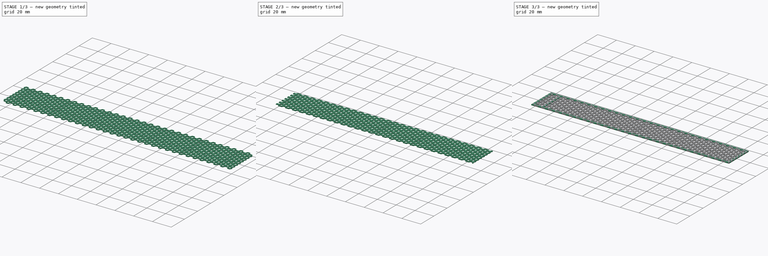
[diagram: build sequence overview — one tinted view per stage of 3, left to right]
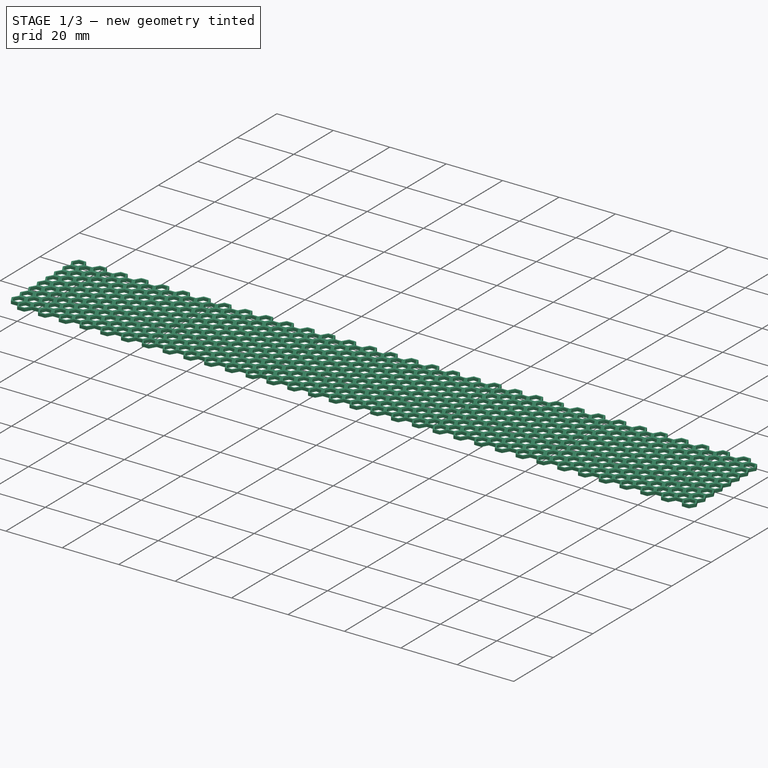
[diagram: stage 1 of 3 — iso view after this stage's code; geometry added in this stage tinted green]
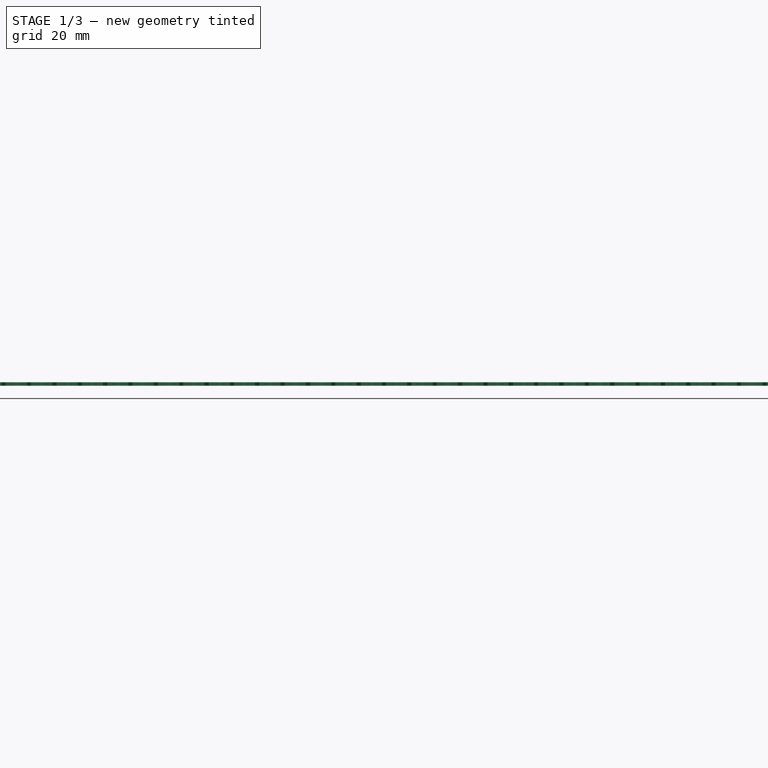
[diagram: stage 1 of 3 — front view after this stage's code; geometry added in this stage tinted green]
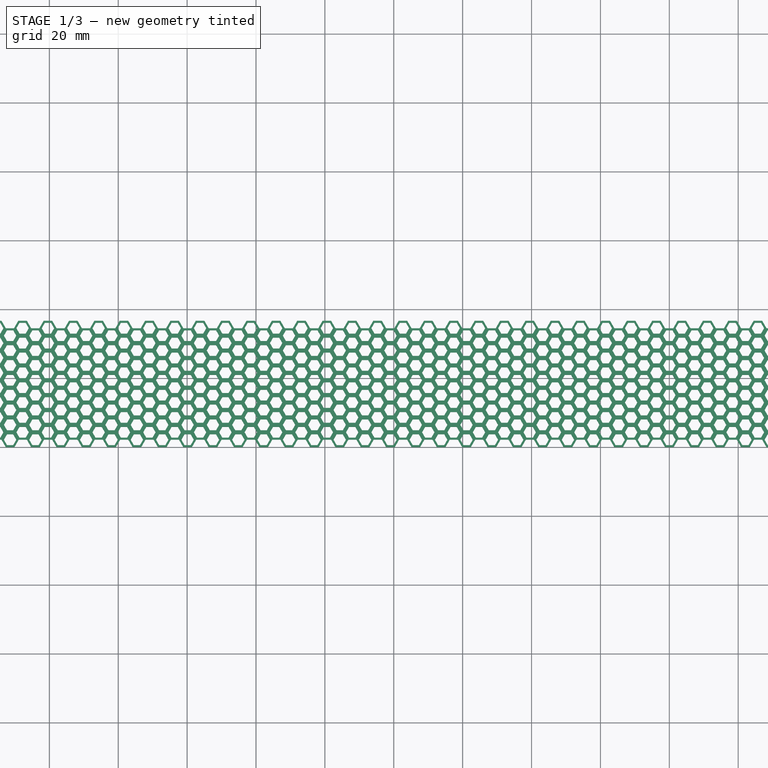
[diagram: stage 1 of 3 — top view after this stage's code; geometry added in this stage tinted green]
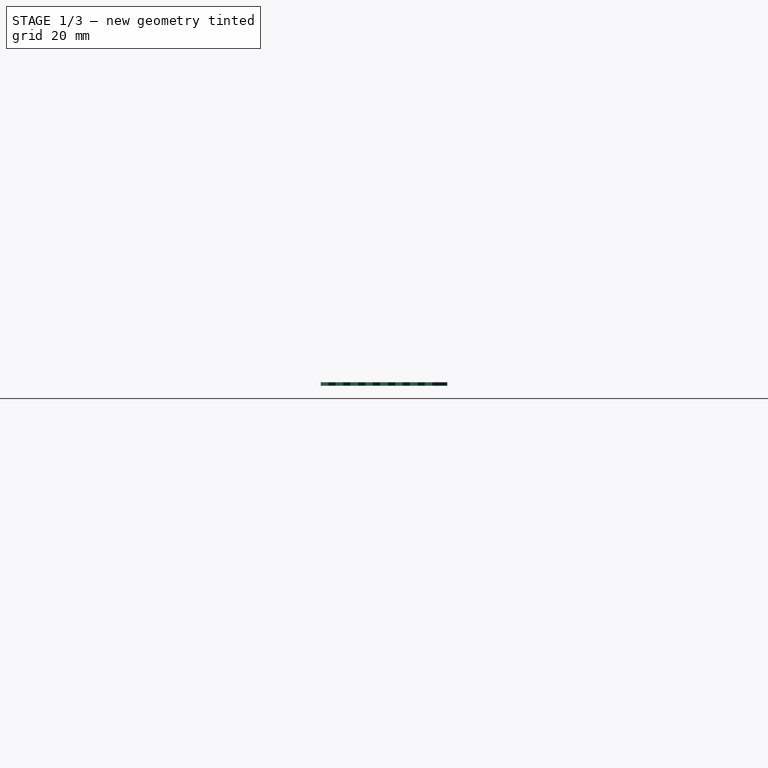
[diagram: stage 1 of 3 — right view after this stage's code; geometry added in this stage tinted green]
FCSTD DOCUMENT  (FreeCAD 0.20R29177 (Git))
Label: Elastic-Honeycommb
License: Creative Commons Attribution
LicenseURL: http://creativecommons.org/licenses/by/4.0/
objects: Sketcher::SketchObject×3, PartDesign::Pad×3, PartDesign::Body×3, PartDesign::LinearPattern×2, Spreadsheet::Sheet×1, PartDesign::MultiTransform×1, Part::MultiCommon×1, Part::MultiFuse×1, Part::Refine×1
note: 18 computed .brp shape members not serialized (recipe doc carries the construction recipe); baked Part::Feature solids carry a one-line shape summary decoded from their .brp

FEATURE [Spreadsheet::Sheet] Spreadsheet  label="param"
  cells = A2=length; B2(length)=235; A3=width; B3(width)==30mm; A4=hight; B4(hight)==1mm; A5=Combstrength; B5(combstrength)==1.2mm; A6=Combdia; B6(combdia)==3.6mm
FEATURE [Sketcher::SketchObject] Sketch
  FullyConstrained = true
  MapMode = 5
  Support = -> [XY_Plane]
  expr: Constraints[74] = <<param>>.combstrength
  expr: Constraints[77] = <<param>>.combdia
  sketch-geometry (27):
    g0: LineSegment StartX=2.14641 StartY=3.71769 StartZ=0 EndX=0.34641 EndY=3.71769 EndZ=0
    g1: LineSegment StartX=0.34641 StartY=3.71769 StartZ=0 EndX=-0.55359 EndY=2.15885 EndZ=0
    g2: LineSegment StartX=-0.55359 StartY=2.15885 StartZ=0 EndX=0.34641 EndY=0.6 EndZ=0
    g3: LineSegment StartX=0.34641 StartY=0.6 StartZ=0 EndX=2.14641 EndY=0.6 EndZ=0
    g4: LineSegment StartX=2.14641 StartY=0.6 StartZ=0 EndX=3.04641 EndY=2.15885 EndZ=0
    g5: LineSegment StartX=3.04641 StartY=2.15885 StartZ=0 EndX=2.14641 EndY=3.71769 EndZ=0
    g6: Circle CenterX=1.24641 CenterY=2.15885 CenterZ=0 NormalX=0 NormalY=0 NormalZ=1 AngleXU=0 Radius=1.8
    g7: LineSegment StartX=2.49282 StartY=4.31769 StartZ=0 EndX=-4e-16 EndY=4.31769 EndZ=0
    g8: LineSegment StartX=-1.24641 StartY=2.15885 StartZ=0 EndX=0 EndY=0 EndZ=0
    g9: LineSegment StartX=0 StartY=0 StartZ=0 EndX=2.49282 EndY=0 EndZ=0
    g10: LineSegment StartX=2.49282 StartY=0 StartZ=0 EndX=3.73923 EndY=2.15885 EndZ=0
    g11: LineSegment StartX=3.73923 StartY=2.15885 StartZ=0 EndX=2.49282 EndY=4.31769 EndZ=0
    g12: Circle CenterX=1.24641 CenterY=2.15885 CenterZ=0 NormalX=0 NormalY=0 NormalZ=1 AngleXU=0 Radius=2.49282
    g13: LineSegment StartX=-1.59282 StartY=2.75885 StartZ=0 EndX=-0.69282 EndY=4.31769 EndZ=0
    g14: LineSegment StartX=-0.69282 StartY=4.31769 StartZ=0 EndX=-1.59282 EndY=5.87654 EndZ=0
    g15: LineSegment StartX=-1.59282 StartY=5.87654 StartZ=0 EndX=-3.39282 EndY=5.87654 EndZ=0
    g16: LineSegment StartX=-3.39282 StartY=5.87654 StartZ=0 EndX=-4.29282 EndY=4.31769 EndZ=0
    g17: LineSegment StartX=-4.29282 StartY=4.31769 StartZ=0 EndX=-3.39282 EndY=2.75885 EndZ=0
    g18: LineSegment StartX=-3.39282 StartY=2.75885 StartZ=0 EndX=-1.59282 EndY=2.75885 EndZ=0
    g19: Circle CenterX=-2.49282 CenterY=4.31769 CenterZ=0 NormalX=0 NormalY=0 NormalZ=1 AngleXU=0 Radius=1.8
    g20: LineSegment StartX=-7e-16 StartY=4.31769 StartZ=0 EndX=-1.24641 EndY=6.47654 EndZ=0
    g21: LineSegment StartX=-1.24641 StartY=6.47654 StartZ=0 EndX=-3.73923 EndY=6.47654 EndZ=0
    g22: LineSegment StartX=-3.73923 StartY=6.47654 StartZ=0 EndX=-4.98564 EndY=4.31769 EndZ=0
    g23: LineSegment StartX=-4.98564 StartY=4.31769 StartZ=0 EndX=-3.73923 EndY=2.15885 EndZ=0
    g24: LineSegment StartX=-3.73923 StartY=2.15885 StartZ=0 EndX=-1.24641 EndY=2.15885 EndZ=0
    g25: LineSegment StartX=-1.24641 StartY=2.15885 StartZ=0 EndX=-7e-16 EndY=4.31769 EndZ=0
    g26: Circle CenterX=-2.49282 CenterY=4.31769 CenterZ=0 NormalX=0 NormalY=0 NormalZ=1 AngleXU=0 Radius=2.49282
  constraints (64):
    c: Coincident(g0,g1)
    c: Coincident(g1,g2)
    c: Coincident(g2,g3)
    c: Coincident(g3,g4)
    c: Coincident(g4,g5)
    c: Coincident(g5,g0)
    c: Equal(g0, g1-g5) x5
    c: PointOnObject(g0,g6)
    c: PointOnObject(g1,g6)
    c: PointOnObject(g2,g6)
    c: PointOnObject(g3,g6)
    c: PointOnObject(g4,g6)
    c: PointOnObject(g5,g6)
    c: Coincident(g8,g9)
    c: Coincident(g9,g10)
    c: Coincident(g10,g11)
    c: Coincident(g11,g7)
    c: Equal(g7, g8-g11) x4
    c: PointOnObject(g7,g12)
    c: PointOnObject(g8,g12)
    c: PointOnObject(g8,g12)
    c: PointOnObject(g9,g12)
    c: PointOnObject(g10,g12)
    c: PointOnObject(g11,g12)
    c: Coincident(g12,g6)
    c: Horizontal(g9)
    c: Horizontal(g3)
    c: Coincident(g13,g14)
    c: Coincident(g14,g15)
    c: Coincident(g15,g16)
    c: Coincident(g16,g17)
    c: Coincident(g17,g18)
    c: Coincident(g18,g13)
    c: Equal(g13, g14-g18) x5
    c: PointOnObject(g13,g19)
    c: PointOnObject(g14,g19)
    c: PointOnObject(g15,g19)
    c: PointOnObject(g16,g19)
    c: PointOnObject(g17,g19)
    c: PointOnObject(g18,g19)
    c: Coincident(g20,g21)
    c: Coincident(g21,g22)
    c: Coincident(g22,g23)
    c: Coincident(g23,g24)
    c: Coincident(g24,g25)
    c: Coincident(g25,g20)
    c: Equal(g20, g21-g25) x5
    c: PointOnObject(g20,g26)
    c: PointOnObject(g21,g26)
    c: PointOnObject(g22,g26)
    c: PointOnObject(g23,g26)
    c: PointOnObject(g24,g26)
    c: PointOnObject(g25,g26)
    c: Coincident(g26,g19)
    c: Horizontal(g18)
    c: Horizontal(g24)
    c: Equal(g19,g6)
    c: Coincident(g20,g7)
    c: Coincident(g8,g24)
    c: Distance(g13,g0) = 1.2
    c: DistanceX(g19,g6) = 3.73923
    c: DistanceY(g6,g19) = 2.15885
    c: Diameter(g6) = 3.6
    c: Coincident(g8,g-1)
FEATURE [PartDesign::Pad] Pad
  Direction = (0,0,1)
  Length = 1
  Length2 = 10
  Profile = -> Sketch
  ReferenceAxis = -> Sketch [N_Axis]
  Type = 0
FEATURE [PartDesign::Body] Body002
  Group = -> [Sketch002,Pad002]
  Origin = -> Origin002
  Tip = -> Pad002
FEATURE [PartDesign::LinearPattern] LinearPattern
  Direction = -> Sketch [H_Axis]
  Length = 235.572
  Occurrences = 33
  expr: Length = round(<<param>>.length / Sketch.Constraints[75]) * Sketch.Constraints[75]
  expr: Occurrences = (Length + 2 * Sketch.Constraints[75]) / (2 * Sketch.Constraints[75])
FEATURE [PartDesign::LinearPattern] LinearPattern001
  Direction = -> Sketch [V_Axis]
  Length = 30.2238
  Occurrences = 8
  expr: Length = (Occurrences - 1) * 2 * Sketch.Constraints[76]
  expr: Occurrences = round((<<param>>.width + 2 * Sketch.Constraints[76]) / (2 * Sketch.Constraints[76]))
FEATURE [PartDesign::MultiTransform] MultiTransform
  BaseFeature = -> Pad
  Originals = -> [Pad]
  Transformations = -> [LinearPattern,LinearPattern001]
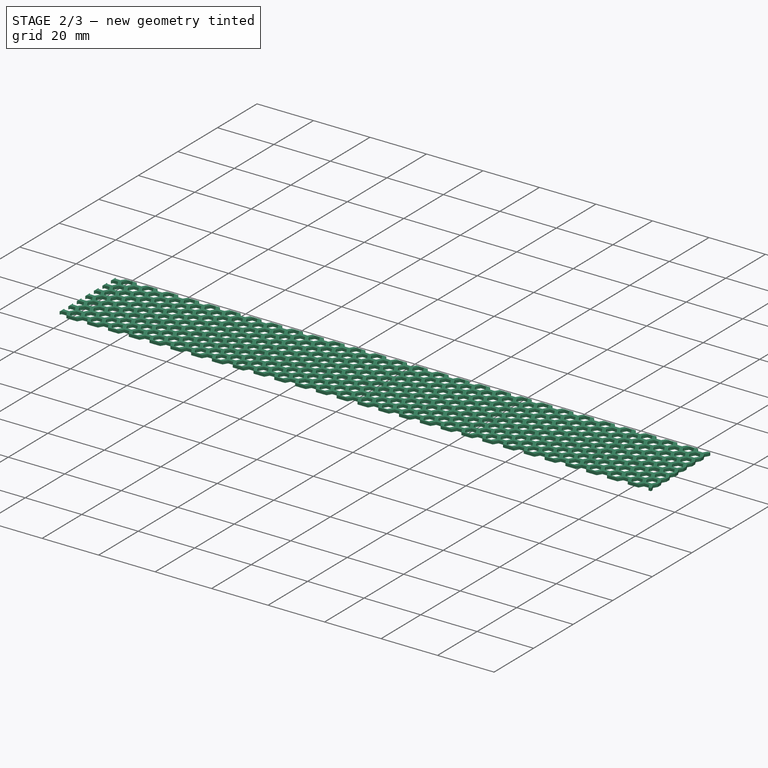
[diagram: stage 2 of 3 — iso view after this stage's code; geometry added in this stage tinted green]
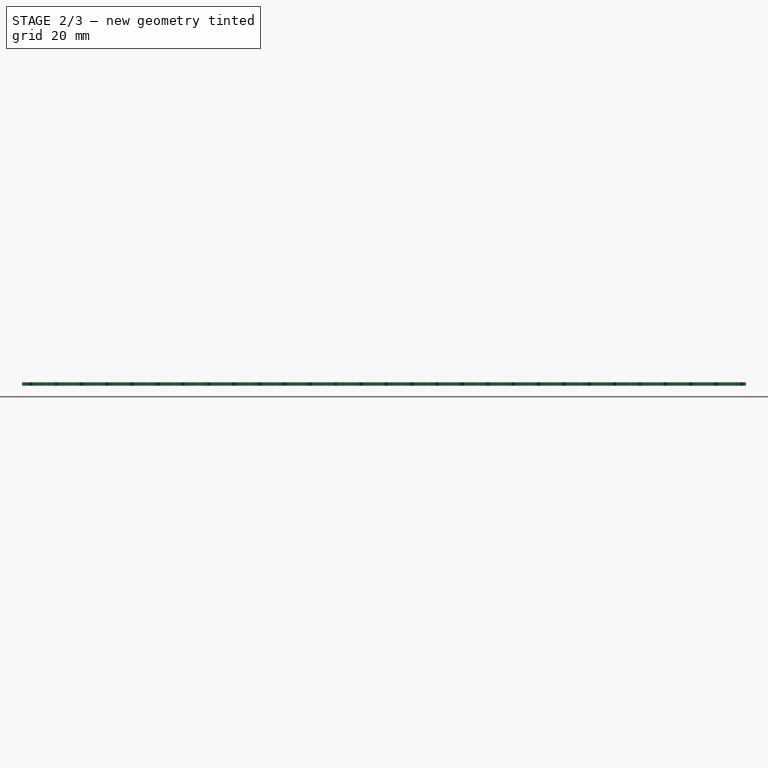
[diagram: stage 2 of 3 — front view after this stage's code; geometry added in this stage tinted green]
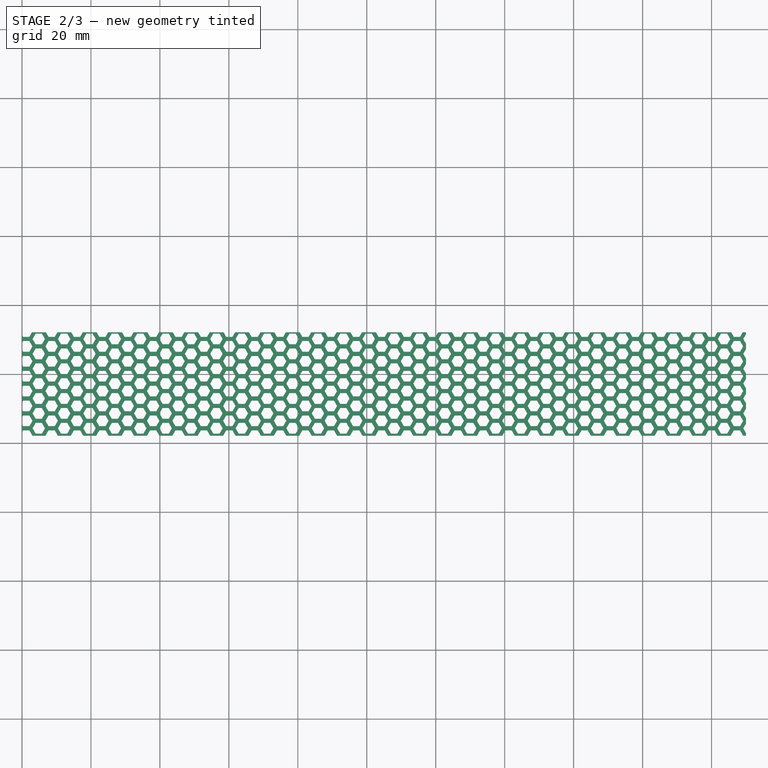
[diagram: stage 2 of 3 — top view after this stage's code; geometry added in this stage tinted green]
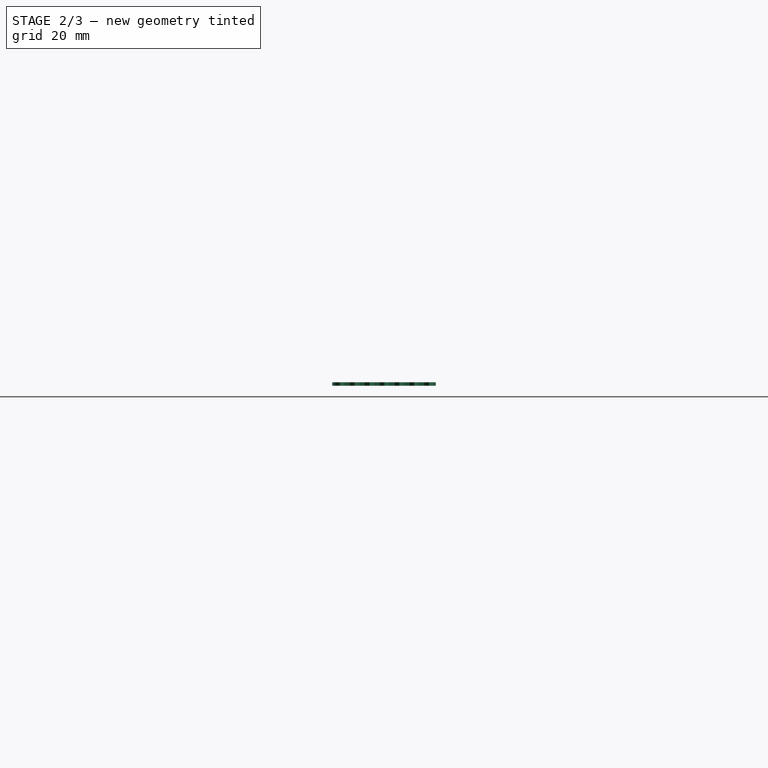
[diagram: stage 2 of 3 — right view after this stage's code; geometry added in this stage tinted green]
FEATURE [Sketcher::SketchObject] Sketch001
  FullyConstrained = true
  MapMode = 5
  Support = -> [XY_Plane001]
  expr: Constraints[11] = Sketch.Constraints[76]
  expr: Constraints[8] = <<param>>.width
  sketch-geometry (4):
    g0: LineSegment StartX=0 StartY=2.15885 StartZ=0 EndX=210 EndY=2.15885 EndZ=0
    g1: LineSegment StartX=210 StartY=2.15885 StartZ=0 EndX=210 EndY=32.1588 EndZ=0
    g2: LineSegment StartX=210 StartY=32.1588 StartZ=0 EndX=0 EndY=32.1588 EndZ=0
    g3: LineSegment StartX=0 StartY=32.1588 StartZ=0 EndX=0 EndY=2.15885 EndZ=0
  constraints (12):
    c: Coincident(g0,g1)
    c: Coincident(g1,g2)
    c: Coincident(g2,g3)
    c: Horizontal(g0)
    c: Horizontal(g2)
    c: Vertical(g1)
    c: Vertical(g3)
    c: DistanceX(g2,g2) = 210
    c: DistanceY(g3,g3) = 30
    c: Coincident(g0,g3)
    c: PointOnObject(g0,g-2)
    c: DistanceY(g-1,g0) = 2.15885
FEATURE [PartDesign::Pad] Pad001
  Direction = (0,0,1)
  Length = 1
  Length2 = 10
  Profile = -> Sketch001
  ReferenceAxis = -> Sketch001 [N_Axis]
  Type = 0
  expr: Length = Pad.Length
FEATURE [PartDesign::Body] Body
  Group = -> [Sketch,Pad,MultiTransform,LinearPattern,LinearPattern001]
  Origin = -> Origin
  Tip = -> MultiTransform
FEATURE [Part::MultiCommon] Common
  Shapes = -> [Body,Body001]
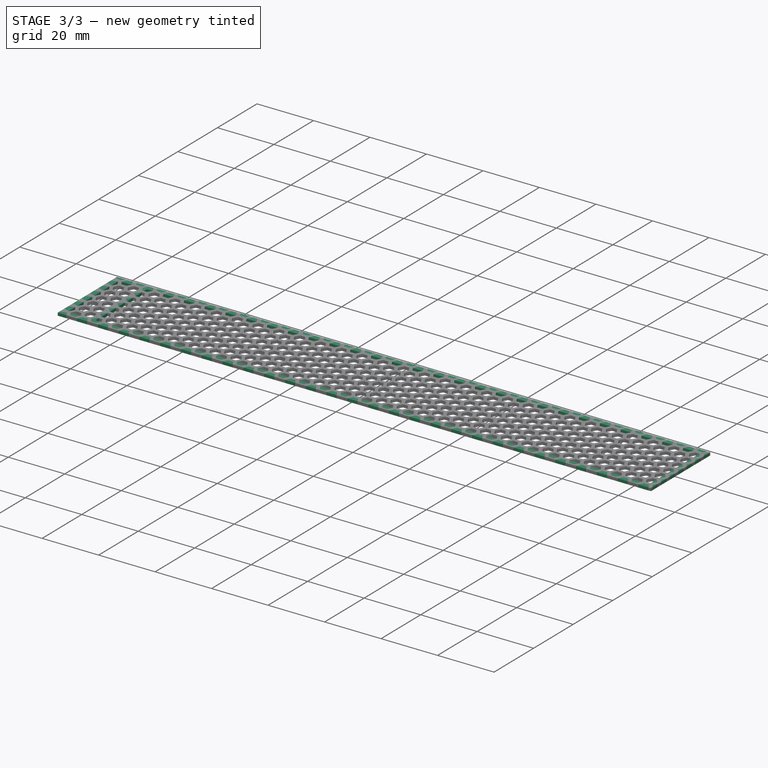
[diagram: stage 3 of 3 — iso view after this stage's code; geometry added in this stage tinted green]
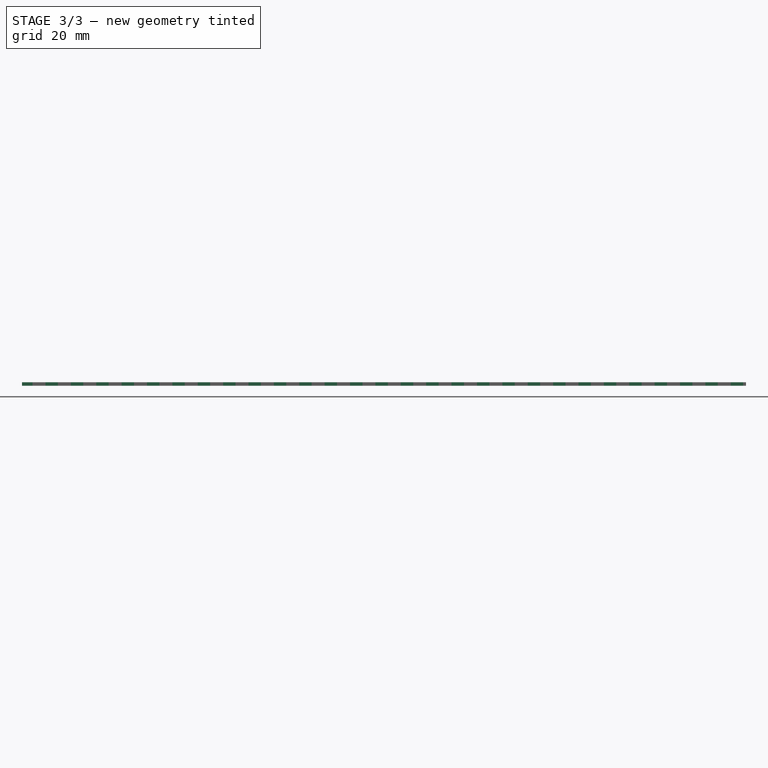
[diagram: stage 3 of 3 — front view after this stage's code; geometry added in this stage tinted green]
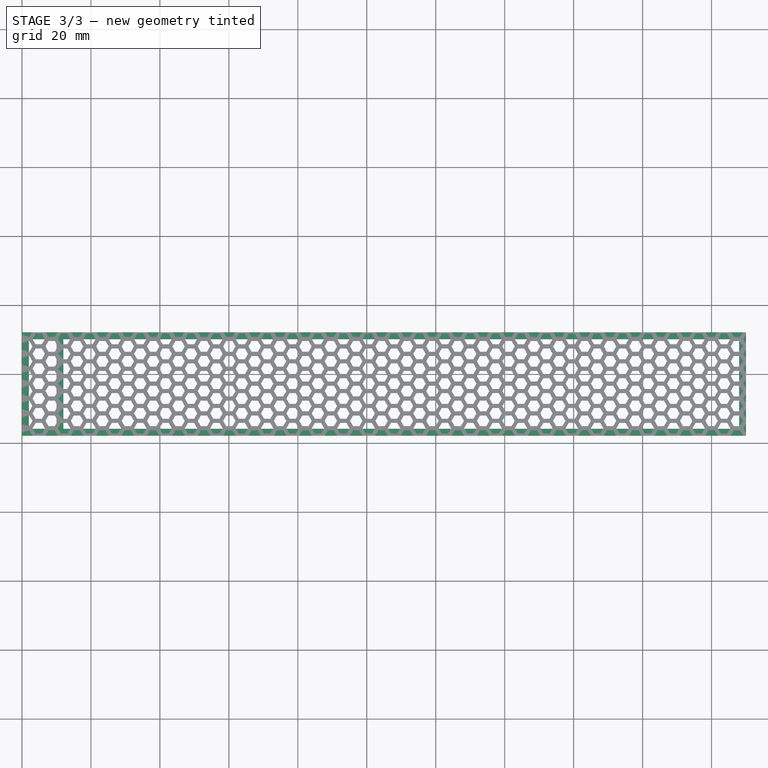
[diagram: stage 3 of 3 — top view after this stage's code; geometry added in this stage tinted green]
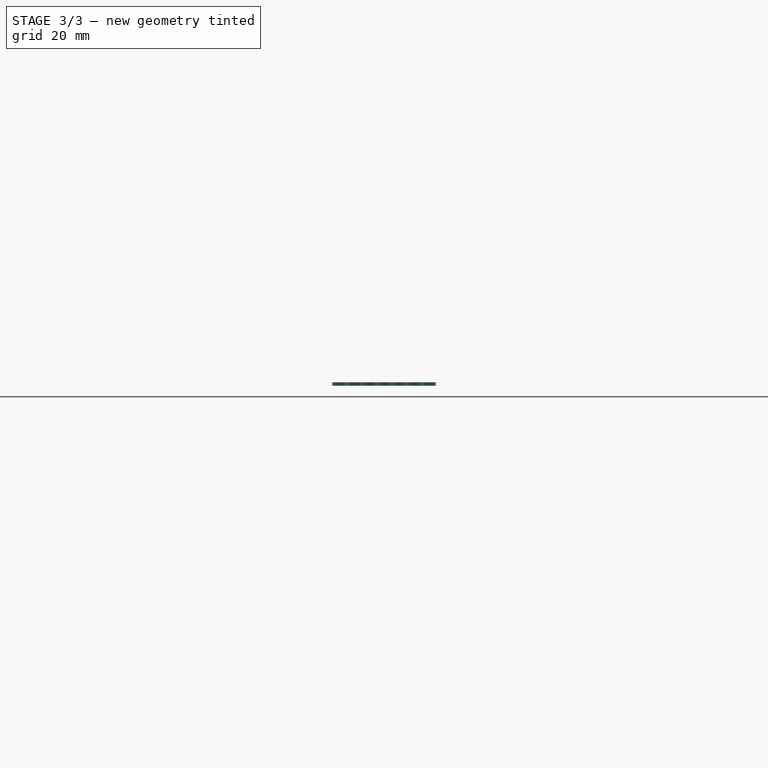
[diagram: stage 3 of 3 — right view after this stage's code; geometry added in this stage tinted green]
FEATURE [PartDesign::Body] Body001
  Group = -> [Sketch001,Pad001]
  Origin = -> Origin001
  Tip = -> Pad001
FEATURE [Sketcher::SketchObject] Sketch002
  FullyConstrained = true
  MapMode = 5
  Support = -> [XY_Plane002]
  expr: Constraints[50] = Sketch.Constraints[76]
  sketch-geometry (18):
    g0: LineSegment StartX=0 StartY=2.15885 StartZ=0 EndX=210 EndY=2.15885 EndZ=0
    g1: LineSegment StartX=210 StartY=2.15885 StartZ=0 EndX=210 EndY=32.1588 EndZ=0
    g2: LineSegment StartX=210 StartY=32.1588 StartZ=0 EndX=0 EndY=32.1588 EndZ=0
    g3: LineSegment StartX=0 StartY=32.1588 StartZ=0 EndX=0 EndY=2.15885 EndZ=0
    g4: LineSegment StartX=2 StartY=30.1588 StartZ=0 EndX=10 EndY=30.1588 EndZ=0
    g5: LineSegment StartX=10 StartY=30.1588 StartZ=0 EndX=10 EndY=4.15885 EndZ=0
    g6: LineSegment StartX=10 StartY=4.15885 StartZ=0 EndX=2 EndY=4.15885 EndZ=0
    g7: LineSegment StartX=2 StartY=4.15885 StartZ=0 EndX=2 EndY=30.1588 EndZ=0
    g8: LineSegment StartX=12 StartY=30.1588 StartZ=0 EndX=208 EndY=30.1588 EndZ=0
    g9: LineSegment StartX=208 StartY=30.1588 StartZ=0 EndX=208 EndY=4.15885 EndZ=0
    g10: LineSegment StartX=208 StartY=4.15885 StartZ=0 EndX=12 EndY=4.15885 EndZ=0
    g11: LineSegment StartX=12 StartY=4.15885 StartZ=0 EndX=12 EndY=30.1588 EndZ=0
    g12: LineSegment StartX=10 StartY=30.1588 StartZ=0 EndX=12 EndY=30.1588 EndZ=0
    g13: LineSegment StartX=10 StartY=4.15885 StartZ=0 EndX=12 EndY=4.15885 EndZ=0
    g14: LineSegment StartX=2 StartY=30.1588 StartZ=0 EndX=2 EndY=32.1588 EndZ=0
    g15: LineSegment StartX=2 StartY=4.15885 StartZ=0 EndX=2 EndY=2.15885 EndZ=0
    g16: LineSegment StartX=2 StartY=4.15885 StartZ=0 EndX=0 EndY=4.15885 EndZ=0
    g17: LineSegment StartX=208 StartY=4.15885 StartZ=0 EndX=210 EndY=4.15885 EndZ=0
  constraints (52):
    c: Coincident(g0,g1)
    c: Coincident(g1,g2)
    c: Coincident(g2,g3)
    c: Coincident(g3,g0)
    c: Horizontal(g0)
    c: Horizontal(g2)
    c: Vertical(g1)
    c: Vertical(g3)
    c: Coincident(g4,g5)
    c: Coincident(g5,g6)
    c: Coincident(g6,g7)
    c: Coincident(g7,g4)
    c: Horizontal(g4)
    c: Horizontal(g6)
    c: Vertical(g5)
    c: Vertical(g7)
    c: Coincident(g8,g9)
    c: Coincident(g9,g10)
    c: Coincident(g10,g11)
    c: Coincident(g11,g8)
    c: Horizontal(g8)
    c: Horizontal(g10)
    c: Vertical(g9)
    c: Vertical(g11)
    c: Coincident(g12,g4)
    c: Coincident(g12,g8)
    c: Coincident(g13,g5)
    c: Coincident(g13,g10)
    c: Horizontal(g12)
    c: Horizontal(g13)
    c: Coincident(g14,g4)
    c: PointOnObject(g14,g2)
    c: Vertical(g14)
    c: Coincident(g15,g6)
    c: PointOnObject(g15,g0)
    c: Vertical(g15)
    c: Coincident(g16,g6)
    c: PointOnObject(g16,g3)
    c: Horizontal(g16)
    c: Coincident(g17,g9)
    c: PointOnObject(g17,g1)
    c: Horizontal(g17)
    c: DistanceX(g12,g12) = 2
    c: Equal(g14,g16)
    c: Equal(g16,g15)
    c: Equal(g15,g17)
    c: DistanceY(g3,g3) = 30
    c: DistanceX(g16,g16) = 2
    c: DistanceX(g2,g2) = 210
    c: DistanceX(g2,g4) = 10
    c: DistanceY(g-1,g0) = 2.15885
    c: PointOnObject(g16,g-2)
FEATURE [PartDesign::Pad] Pad002
  Direction = (0,0,1)
  Length = 1
  Length2 = 10
  Profile = -> Sketch002
  ReferenceAxis = -> Sketch002 [N_Axis]
  Type = 0
  expr: Length = Pad.Length
FEATURE [Part::MultiFuse] Fusion
  Shapes = -> [Common,Body002]
FEATURE [Part::Refine] Fusion001
  Source = -> Fusion
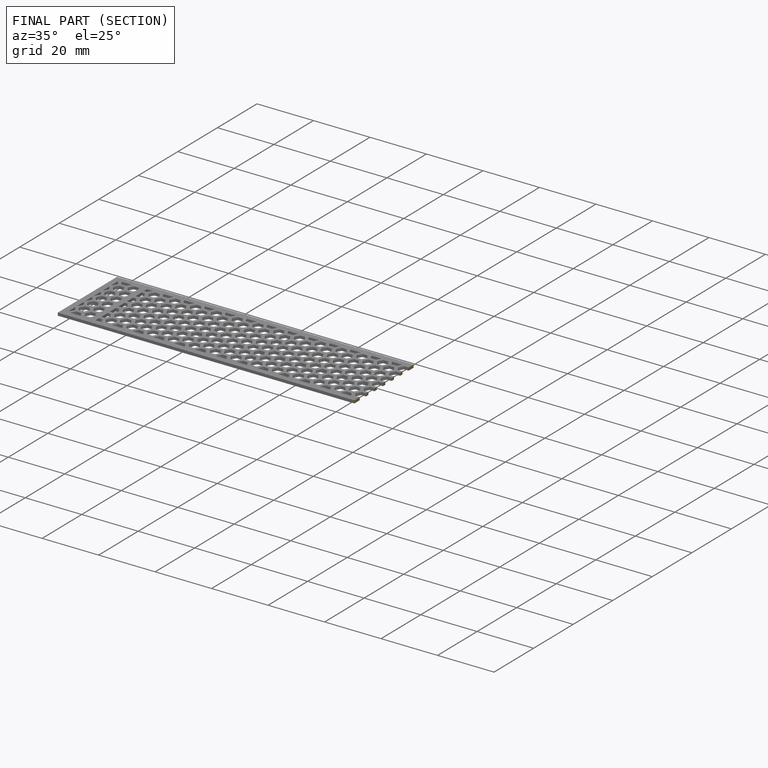
[diagram: finished part — half-section view (interior)]
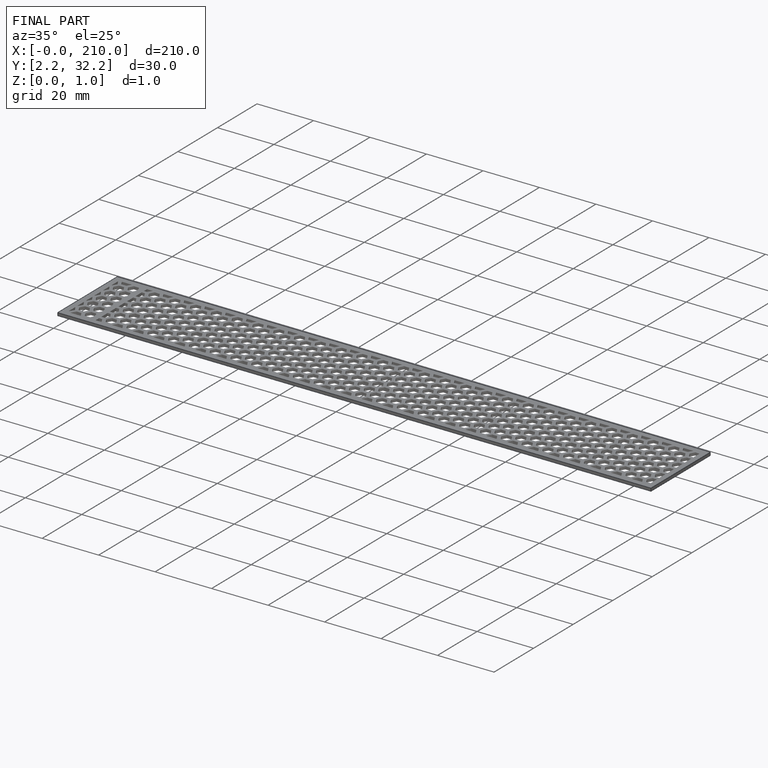
[diagram: finished part — iso view with bounding-box wireframe]
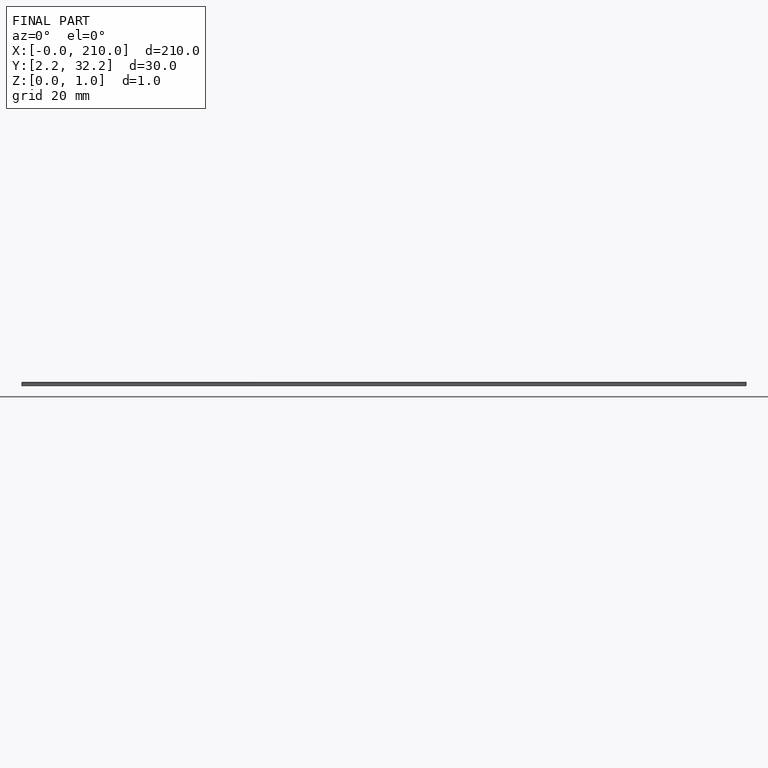
[diagram: finished part — front view with bounding-box wireframe]
